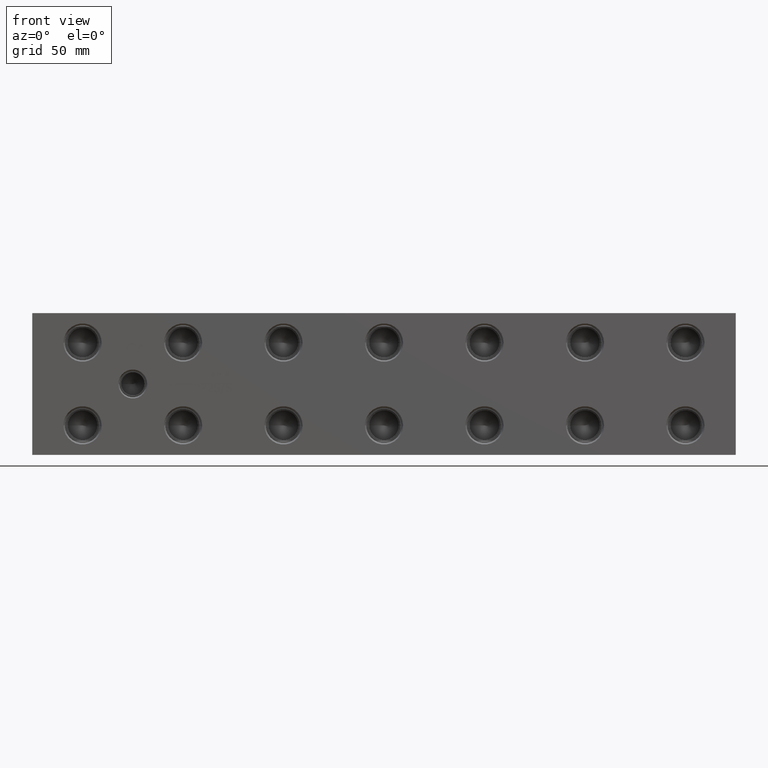
[diagram: clean part render]
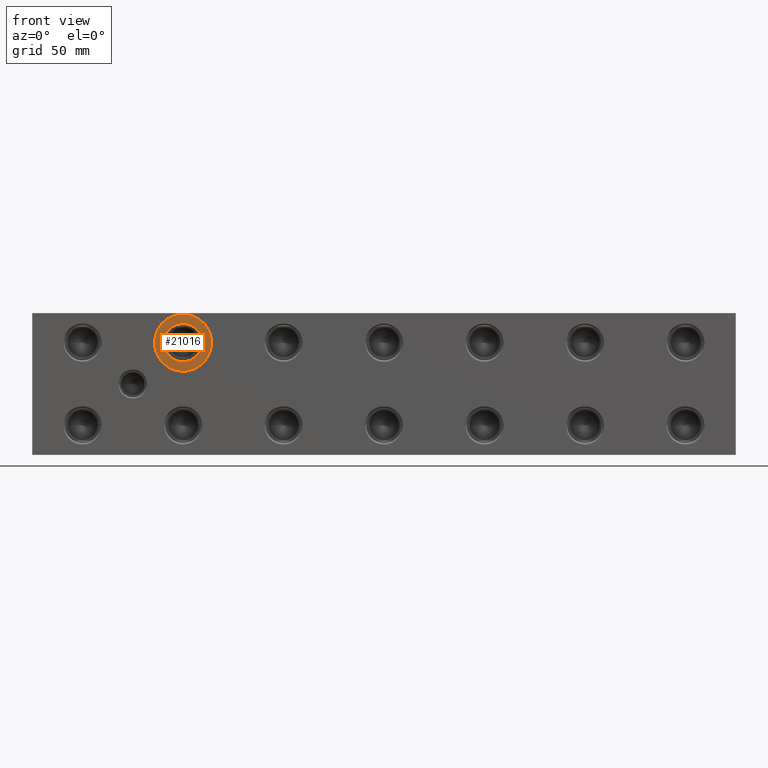
[diagram: same view with one face highlighted and labeled with its STEP entity id]
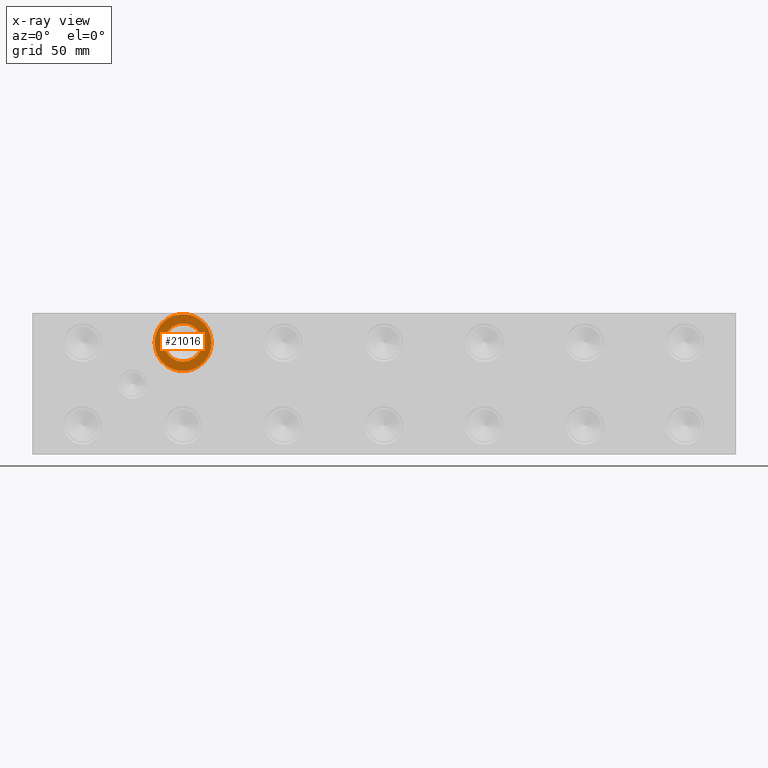
[diagram: x-ray of the same camera — body ghosted, the highlighted face saturated]
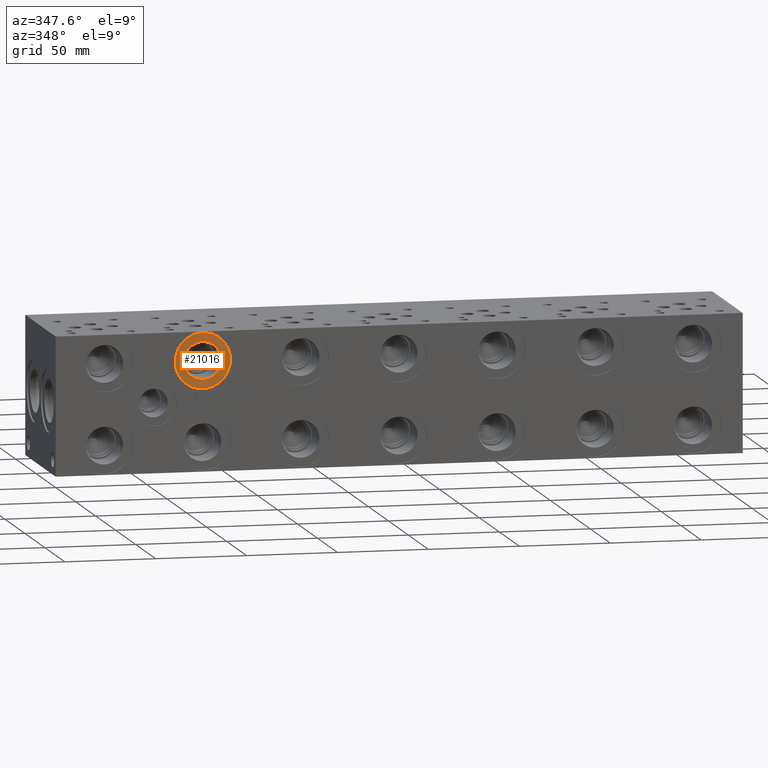
[diagram: same view with one face highlighted and labeled with its STEP entity id]
A machine part, front view. The second image highlights one B-rep face of the part: STEP entity #21016.
The next image is the same camera in x-ray: the body ghosted, the highlighted face saturated — about 0% of this face is hidden behind the body in this view.
A second angle (auxiliary view) of the same face is appended — the face is thin or edge-on in the first view.
In plain terms, the highlighted planar face has unit normal (0, 1, 0).
Its self-contained STEP definition (entity closure, byte-faithful):
#509=CIRCLE('',#22060,15.3162);
#510=CIRCLE('',#22061,15.3162);
#511=CIRCLE('',#22063,10.2997);
#512=CIRCLE('',#22064,10.2997);
#1219=FACE_BOUND('',#3859,.T.);
#1812=PLANE('',#22062);
#2633=FACE_OUTER_BOUND('',#3858,.T.);
#3858=EDGE_LOOP('',(#17492,#17493));
#3859=EDGE_LOOP('',(#17494,#17495));
#9732=VERTEX_POINT('',#35380);
#9733=VERTEX_POINT('',#35382);
#9734=VERTEX_POINT('',#35386);
#9735=VERTEX_POINT('',#35387);
#12496=EDGE_CURVE('',#9732,#9733,#509,.T.);
#12497=EDGE_CURVE('',#9733,#9732,#510,.T.);
#12498=EDGE_CURVE('',#9734,#9735,#511,.T.);
#12499=EDGE_CURVE('',#9735,#9734,#512,.T.);
#17492=ORIENTED_EDGE('',*,*,#12497,.F.);
#17493=ORIENTED_EDGE('',*,*,#12496,.F.);
#17494=ORIENTED_EDGE('',*,*,#12498,.T.);
#17495=ORIENTED_EDGE('',*,*,#12499,.T.);
#21016=ADVANCED_FACE('',(#2633,#1219),#1812,.F.);
#22060=AXIS2_PLACEMENT_3D('',#35383,#25812,#25813);
#22061=AXIS2_PLACEMENT_3D('',#35384,#25814,#25815);
#22062=AXIS2_PLACEMENT_3D('',#35385,#25816,#25817);
#22063=AXIS2_PLACEMENT_3D('',#35388,#25818,#25819);
#22064=AXIS2_PLACEMENT_3D('',#35389,#25820,#25821);
#25812=DIRECTION('center_axis',(0.,1.,0.));
#25813=DIRECTION('ref_axis',(1.,0.,0.));
#25814=DIRECTION('center_axis',(0.,1.,0.));
#25815=DIRECTION('ref_axis',(1.,0.,0.));
#25816=DIRECTION('center_axis',(0.,1.,0.));
#25817=DIRECTION('ref_axis',(0.,0.,1.));
#25818=DIRECTION('center_axis',(0.,1.,0.));
#25819=DIRECTION('ref_axis',(1.,0.,0.));
#25820=DIRECTION('center_axis',(0.,1.,0.));
#25821=DIRECTION('ref_axis',(1.,0.,0.));
#35380=CARTESIAN_POINT('',(65.659,0.7874,60.325));
#35382=CARTESIAN_POINT('',(96.2914,0.7874,60.325));
#35383=CARTESIAN_POINT('Origin',(80.9752,0.7874,60.325));
#35384=CARTESIAN_POINT('Origin',(80.9752,0.7874,60.325));
#35385=CARTESIAN_POINT('Origin',(91.2749,0.7874,60.325));
#35386=CARTESIAN_POINT('',(91.2749,0.7874,60.325));
#35387=CARTESIAN_POINT('',(70.6755,0.7874,60.325));
#35388=CARTESIAN_POINT('Origin',(80.9752,0.7874,60.325));
#35389=CARTESIAN_POINT('Origin',(80.9752,0.7874,60.325));